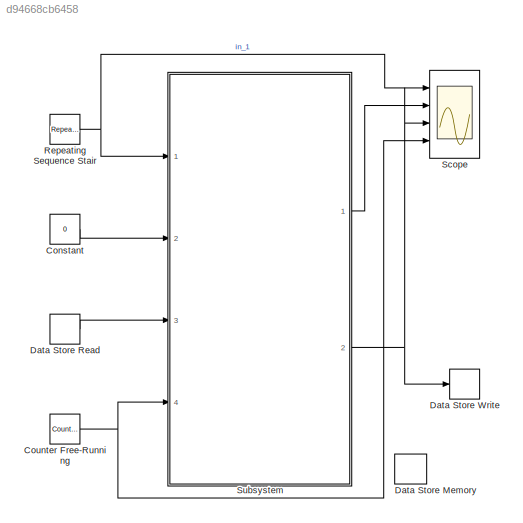
MODEL slx_d94668cb6458
KIND model
CONFIG AbsTol = auto
CONFIG EnableMultiTasking = off
CONFIG FixedStep = auto
CONFIG MaxStep = auto
CONFIG MinStep = auto
CONFIG RelTol = 1e-3
CONFIG SampleTimeConstraint = Unconstrained
CONFIG Solver = FixedStepDiscrete
CONFIG SolverName = FixedStepDiscrete
CONFIG StartTime = 0.0
CONFIG StopTime = 10.0
BLOCK [Constant] Constant
  Value = 0
BLOCK [Reference] Counter Free-Running  REF=simulink/Sources/Counter
Free-Running
  Ports = [0, 1]
  SourceBlock = simulink/Sources/Counter\nFree-Running
  SourceProductBaseCode = SL
  SourceProductName = Simulink
  SourceType = Counter Free-Running
BLOCK [DataStoreMemory] Data Store Memory
  ReadBeforeWriteMsg = warning
  ShowAdditionalParam = off
  WriteAfterReadMsg = warning
  WriteAfterWriteMsg = warning
BLOCK [DataStoreRead] Data Store Read
  Ports = [0, 1]
BLOCK [DataStoreWrite] Data Store Write
  Ports = [1]
BLOCK [Reference] Repeating Sequence Stair  REF=simulink/Sources/Repeating
Sequence
Stair
  Ports = [0, 1]
  SourceBlock = simulink/Sources/Repeating\nSequence\nStair
  SourceProductBaseCode = SL
  SourceProductName = Simulink
  SourceType = Repeating Sequence Stair
BLOCK [Scope] Scope
  Floating = off
  NumInputPorts = 4
  Ports = [4]
  ScopeSpecificationString = Simulink.scopes.TimeScopeBlockCfg('CurrentConfiguration', extmgr.ConfigurationSet(extmgr.Configuration('Core','General UI',true),extmgr.Configuration('Core','Source UI',true),extmgr.Configuration('Sources','WiredSimulink',true),extmgr.Configuration('Visuals','Time Domain',true,'SerializedDisplays',{struct('MinYLimReal','0.25','MaxYLimReal','7.75','YLabelReal','','MinYLimMag','0.25','MaxYLimMag','7...<+3355ch>
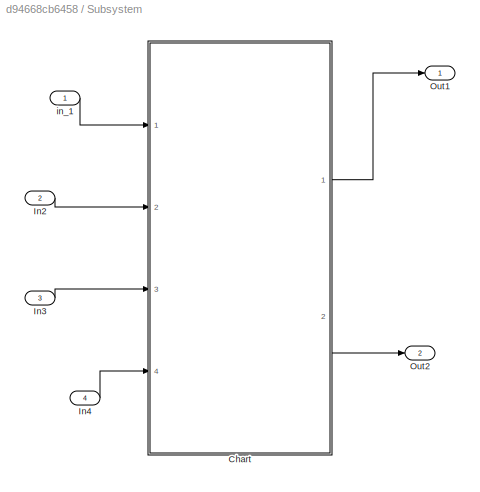
BLOCK [SubSystem] Subsystem
  Ports = [4, 2]
  RequestExecContextInheritance = off
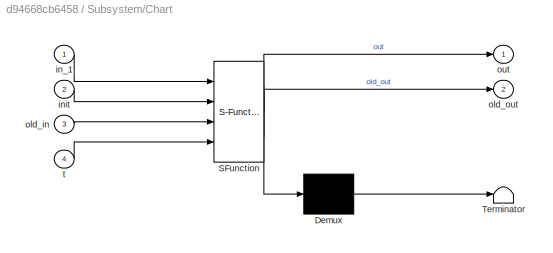
BLOCK [SubSystem] Subsystem/Chart
  ErrorFcn = Stateflow.Translate.translate
  PermitHierarchicalResolution = ExplicitOnly
  Ports = [4, 2]
  RequestExecContextInheritance = off
  SFBlockType = Chart
  TreatAsAtomicUnit = on
BLOCK [Demux] Subsystem/Chart/ Demux 
  Outputs = 1
  Ports = [1, 1]
BLOCK [S-Function] Subsystem/Chart/ SFunction 
  EnableBusSupport = on
  FunctionName = sf_sfun
  PortCounts = [4 3]
  Ports = [4, 3]
  SFcnIsStateOwnerBlock = off
  SFunctionDeploymentMode = off
  Tag = Stateflow S-Function delay_without_delay_block 3
BLOCK [Terminator] Subsystem/Chart/ Terminator 
BLOCK [Inport] Subsystem/Chart/in_1
  IconDisplay = Port number
BLOCK [Inport] Subsystem/Chart/init
  IconDisplay = Port number
  Port = 2
BLOCK [Inport] Subsystem/Chart/old_in
  IconDisplay = Port number
  Port = 3
BLOCK [Outport] Subsystem/Chart/old_out
  IconDisplay = Port number
  Port = 2
BLOCK [Outport] Subsystem/Chart/out
  IconDisplay = Port number
BLOCK [Inport] Subsystem/Chart/t
  IconDisplay = Port number
  Port = 4
BLOCK [Inport] Subsystem/In2
  IconDisplay = Port number
  Port = 2
BLOCK [Inport] Subsystem/In3
  IconDisplay = Port number
  Port = 3
BLOCK [Inport] Subsystem/In4
  IconDisplay = Port number
  Port = 4
BLOCK [Outport] Subsystem/Out1
  IconDisplay = Port number
BLOCK [Outport] Subsystem/Out2
  IconDisplay = Port number
  Port = 2
BLOCK [Inport] Subsystem/in_1
  IconDisplay = Port number
LINE Constant:1 -> Subsystem:2
NET Counter Free-Running:1 -> Scope:4, Subsystem:4
LINE Data Store Read:1 -> Subsystem:3
NET Repeating Sequence Stair:1 -> Scope:1, Subsystem:1
LINE Subsystem/Chart:1 -> Subsystem/Out1:1
LINE Subsystem/Chart:2 -> Subsystem/Out2:1
LINE Subsystem/In2:1 -> Subsystem/Chart:2
LINE Subsystem/In3:1 -> Subsystem/Chart:3
LINE Subsystem/In4:1 -> Subsystem/Chart:4
LINE Subsystem/in_1:1 -> Subsystem/Chart:1
LINE Subsystem:1 -> Scope:2
NET Subsystem:2 -> Data Store Write:1, Scope:3
note: NET lines group one-source signal fan-out (src -> all destinations, sorted); 1:1 wires keep LINE
CHART Subsystem/Chart states=0 transitions=6
